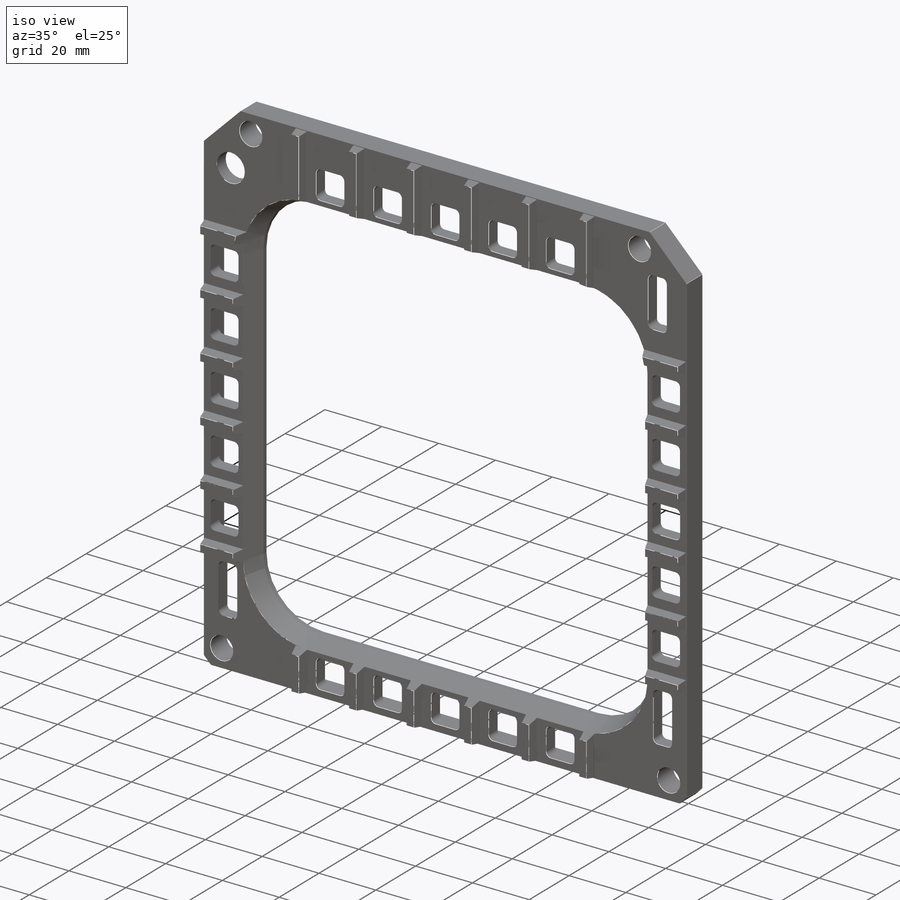
[diagram: iso view]
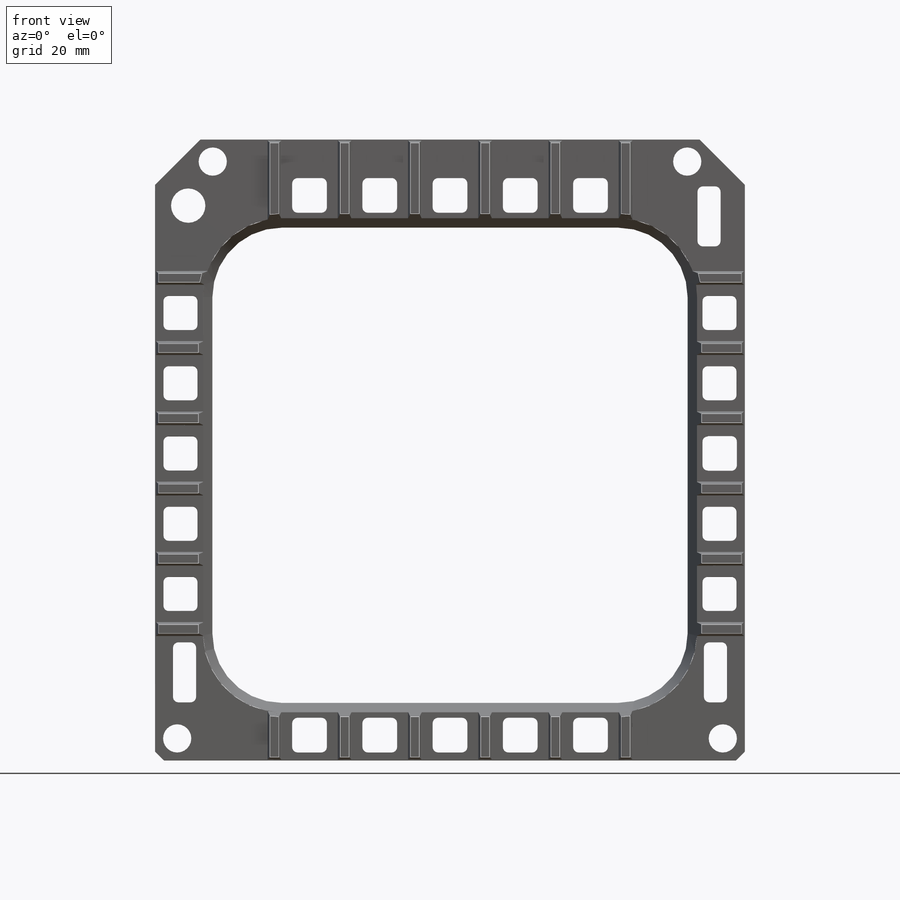
[diagram: front view]
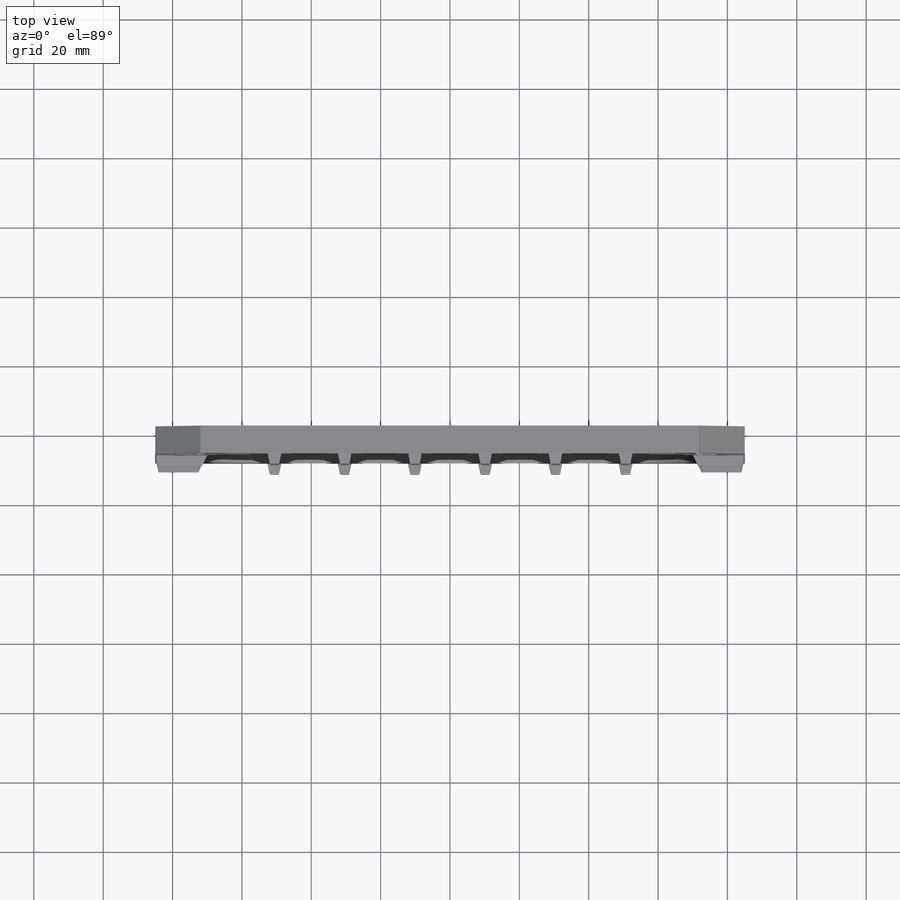
[diagram: top view]
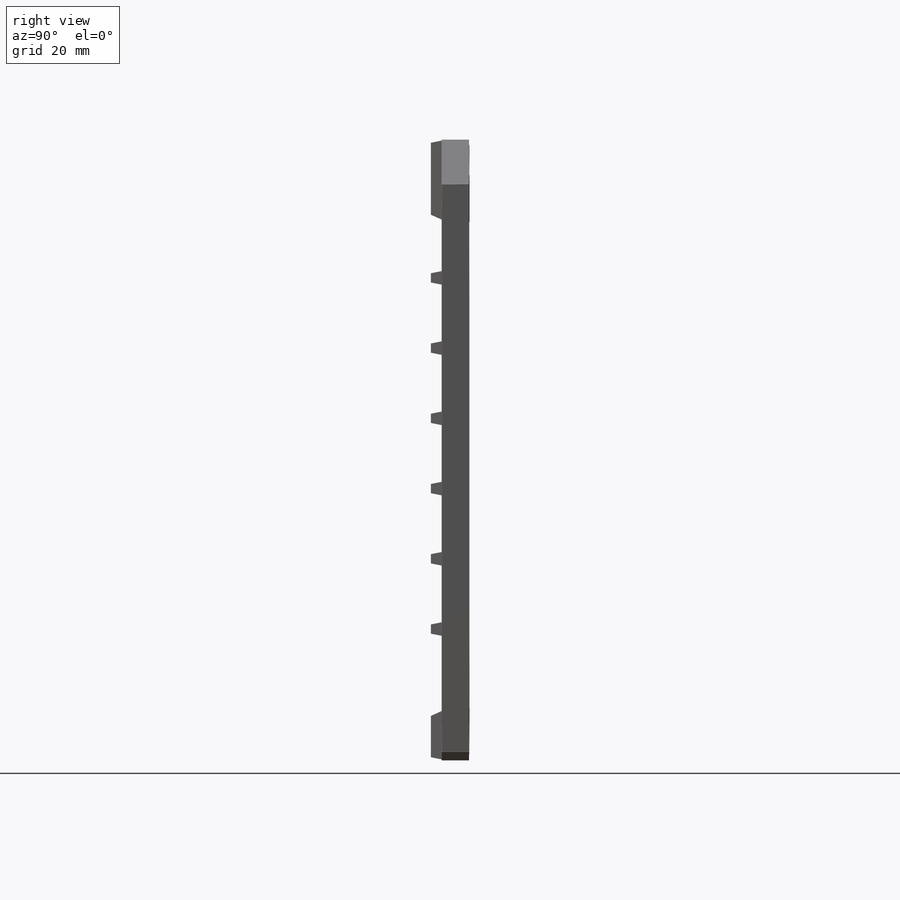
[diagram: right view]
SOLIDWORKS PART (.sldprt)
format: sldprt  version: not decoded by parser v0  size: 2,798,592 bytes
history: native  units: mm
features: sketch x14, cut_extrude x8, pattern_linear x6, extrude x4, fillet x3, material x1, chamfer x1, mirror x1 (+15 scaffold rows collapsed)
feature tree (53):
  scaffold x15  (default folders/planes/origin — collapsed)
  material  "Material <not specified>"
  sketch  "Sketch1"  dims[D1=170.0mm D2=179.0mm D6=2.5mm D7=2.5mm D8=13.0mm D9=13.0mm]
  extrude  "Base"  Depth=8mm
  sketch  "Sketch2"  dims[c1.D4=20.0mm c1.D1=137.0mm c1.D2=137.0mm c1.D3=15.875mm c1.D5=26.125mm c2.D3=25.4mm]
  cut_extrude  "DisplayCut"  [1 undecoded]
  chamfer  "Display Chamfer"  Distance=6.5mm Angle=22.5deg
  sketch  "Sketch26"  dims[c1.D6=1.5mm c1.D11=1.5mm c1.D2=165.0mm c1.D1=~88.503125mm c2.D2=2.4mm c2.D3=9.8mm c2.D4=4.9mm c2.D5=4.9mm c2.D7=2.4mm c2.D8=9.8mm c2.D9=4.9mm c2.D10=4.9mm]
  cut_extrude  "Extrude18"  [1 undecoded]
  sketch  "Sketch28"  dims[D1=0.3mm D2=0.0mm D3=1.95mm D4=1.95mm]
  extrude  "Extrude19"  Depth=3.175mm
  pattern_linear  "LPattern7"  Count1=3 Count2=1 Spacing1=20.25mm Spacing2=50mm
  pattern_linear  "LPattern8"  Count1=4 Count2=1 Spacing1=20.25mm Spacing2=50mm
  sketch  "Display Center"
  mirror  "Mirror1"
  sketch  "Sketch29"  dims[D1=0.3mm D2=0.0mm D3=1.95mm D4=1.95mm]
  extrude  "Extrude20"  Depth=3.175mm
  pattern_linear  "LPattern9"  Count1=3 Count2=1 Spacing1=20.25mm Spacing2=50mm
  pattern_linear  "LPattern10"  Count1=4 Count2=1 Spacing1=20.25mm Spacing2=50mm
  sketch  "3DSketch4"
  sketch  "Sketch33"  dims[D1=0.3mm D2=0.0mm D3=1.95mm D4=1.95mm]
  extrude  "Extrude25"  Depth=3.175mm
  pattern_linear  "LPattern11"  Count1=3 Count2=1 Spacing1=20.25mm Spacing2=50mm
  pattern_linear  "LPattern12"  Count1=4 Count2=1 Spacing1=20.25mm Spacing2=50mm
  sketch  "Sketch34"
  cut_extrude  "Extended Display Cutout"  [1 undecoded]
  sketch  "Sketch20"  dims[D3=7.9375mm D1=6.35mm D2=6.35mm D4=6.35mm D5=16.6mm]
  cut_extrude  "Scew hole cut"  [1 undecoded]
  sketch  "Sketch24"  dims[D3=9.7mm D1=9.525mm D2=19.05mm]
  cut_extrude  "Indicator light cut out"  [1 undecoded]
  sketch  "Sketch25"  dims[D7=1.5mm D14=1.5mm D1=~8.466667mm D2=25.4mm D3=8.55mm D4=8.55mm D5=3.23mm D6=3.23mm D8=22.15mm D9=22.15mm D10=7.09mm D11=6.46mm D12=8.55mm D13=8.55mm]
  cut_extrude  "Switch Cut"  [1 undecoded]
  sketch  "Sketch31"  dims[c1.D2=2.0mm c1.D1=1.5875mm c2.D2=1.5875mm c2.D3=1.5875mm c2.D4=1.5875mm c2.D5=1.69mm c2.D6=1.69mm c3.D3=1.69mm c3.D7=1.69mm c3.D8=2.14mm]
  cut_extrude  "Back Deep Recess"  Depth=3.6mm
  sketch  "Sketch32"  dims[D1=1.5875mm D2=0.0mm]
  cut_extrude  "Back Inner Fringe Cut"  Depth=1.83mm
  fillet  "Fillet1"  Radius=0.1mm
  fillet  "Fillet2"  Radius=0.1mm
  fillet  "Fillet3"  Radius=0.1mm
decode coverage: 27 of 37 modeling features carry decoded parameters
note: ~ marks probable driven/reference dimensions
note: 6 parameter values undecoded
summary: no parameter record found for 6 features
note: suppression state not decoded; provenance and decode notes live in map.json
